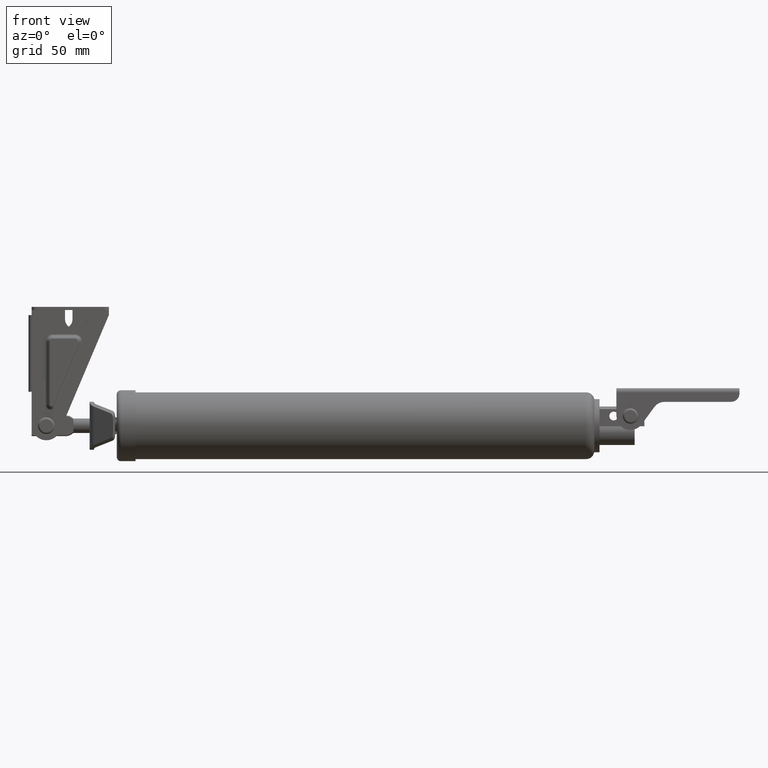
[diagram: clean part render]
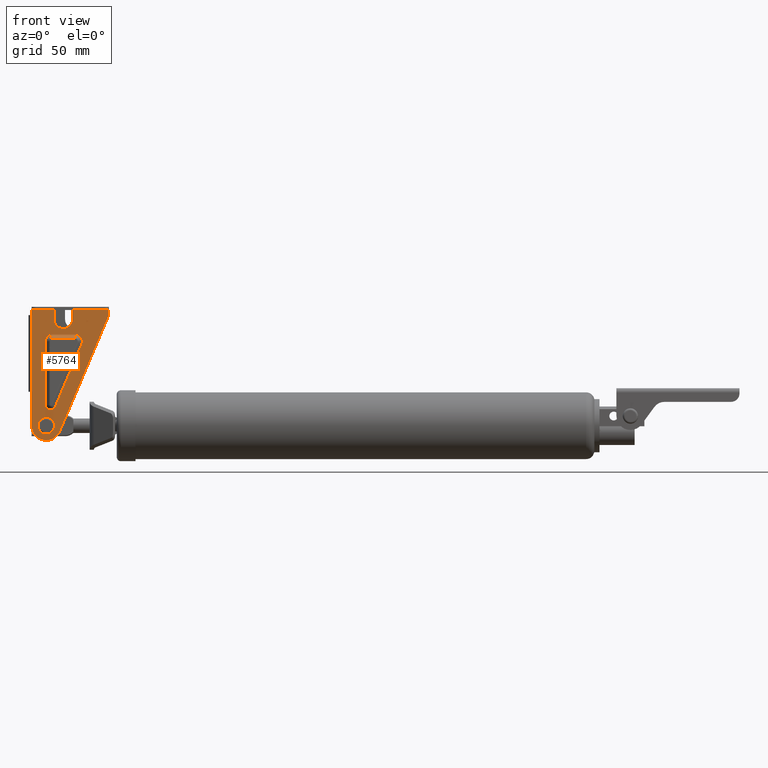
[diagram: same view with one face highlighted and labeled with its STEP entity id]
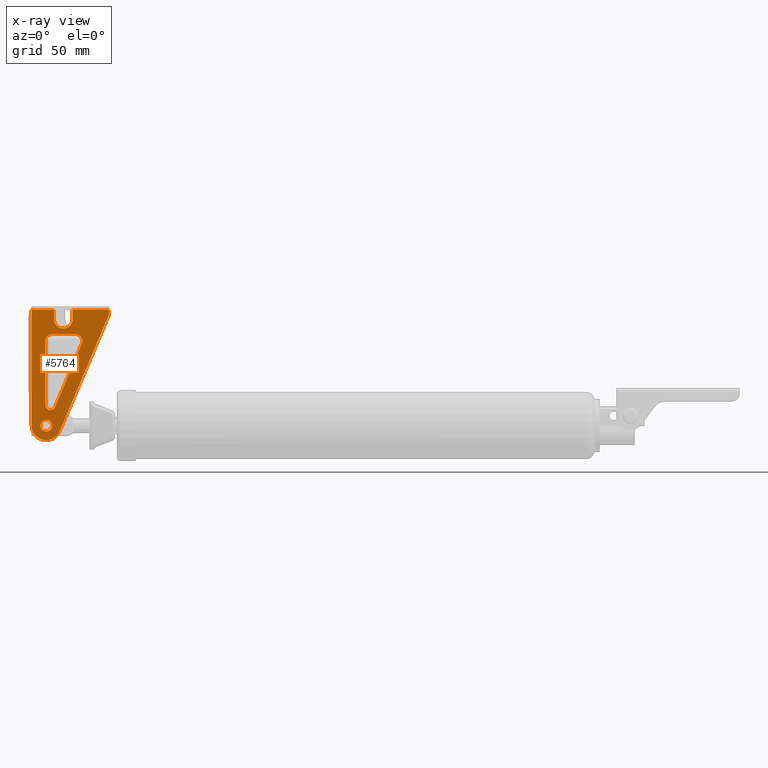
[diagram: x-ray of the same camera — body ghosted, the highlighted face saturated]
A machine part, front view. The second image highlights one B-rep face of the part: STEP entity #5764.
The next image is the same camera in x-ray: the body ghosted, the highlighted face saturated — about 0% of this face is hidden behind the body in this view.
In plain terms, the highlighted planar face has unit normal (0, -1, -0).
Its self-contained STEP definition (entity closure, byte-faithful):
#339=LINE('',#8968,#818);
#340=LINE('',#8978,#819);
#342=LINE('',#8990,#821);
#350=LINE('',#9014,#829);
#351=LINE('',#9018,#830);
#352=LINE('',#9020,#831);
#353=LINE('',#9022,#832);
#354=LINE('',#9024,#833);
#355=LINE('',#9028,#834);
#356=LINE('',#9030,#835);
#357=LINE('',#9032,#836);
#358=LINE('',#9033,#837);
#818=VECTOR('',#7224,30.630614447912);
#819=VECTOR('',#7237,10.8603856057283);
#821=VECTOR('',#7251,32.8314374978183);
#829=VECTOR('',#7277,16.3);
#830=VECTOR('',#7280,60.4979338490171);
#831=VECTOR('',#7281,2.5);
#832=VECTOR('',#7282,17.4);
#833=VECTOR('',#7283,4.44999990993001);
#834=VECTOR('',#7286,4.44999995002);
#835=VECTOR('',#7287,10.7);
#836=VECTOR('',#7288,2.5);
#837=VECTOR('',#7289,36.7);
#1292=PLANE('',#6273);
#1474=FACE_BOUND('',#2049,.T.);
#1475=FACE_BOUND('',#2050,.T.);
#1643=FACE_OUTER_BOUND('',#2048,.T.);
#2048=EDGE_LOOP('',(#4419,#4420,#4421,#4422,#4423,#4424,#4425,#4426,#4427,
#4428,#4429));
#2049=EDGE_LOOP('',(#4430));
#2050=EDGE_LOOP('',(#4431,#4432,#4433,#4434,#4435,#4436));
#2419=CIRCLE('',#6255,3.41421356237309);
#2423=CIRCLE('',#6261,3.41421356237296);
#2427=CIRCLE('',#6267,2.414213562373);
#2430=CIRCLE('',#6274,6.99999999999998);
#2431=CIRCLE('',#6275,4.44999999999999);
#2432=CIRCLE('',#6276,2.74999999999997);
#2723=VERTEX_POINT('',#8965);
#2724=VERTEX_POINT('',#8967);
#2725=VERTEX_POINT('',#8971);
#2727=VERTEX_POINT('',#8977);
#2729=VERTEX_POINT('',#8983);
#2731=VERTEX_POINT('',#8989);
#2737=VERTEX_POINT('',#9012);
#2738=VERTEX_POINT('',#9013);
#2739=VERTEX_POINT('',#9015);
#2740=VERTEX_POINT('',#9017);
#2741=VERTEX_POINT('',#9019);
#2742=VERTEX_POINT('',#9021);
#2743=VERTEX_POINT('',#9023);
#2744=VERTEX_POINT('',#9025);
#2745=VERTEX_POINT('',#9027);
#2746=VERTEX_POINT('',#9029);
#2747=VERTEX_POINT('',#9031);
#2748=VERTEX_POINT('',#9034);
#3338=EDGE_CURVE('',#2724,#2723,#339,.T.);
#3340=EDGE_CURVE('',#2723,#2725,#2419,.T.);
#3343=EDGE_CURVE('',#2725,#2727,#340,.T.);
#3346=EDGE_CURVE('',#2727,#2729,#2423,.T.);
#3349=EDGE_CURVE('',#2729,#2731,#342,.T.);
#3352=EDGE_CURVE('',#2724,#2731,#2427,.T.);
#3361=EDGE_CURVE('',#2737,#2738,#350,.T.);
#3362=EDGE_CURVE('',#2739,#2737,#2430,.T.);
#3363=EDGE_CURVE('',#2740,#2739,#351,.T.);
#3364=EDGE_CURVE('',#2741,#2740,#352,.T.);
#3365=EDGE_CURVE('',#2742,#2741,#353,.T.);
#3366=EDGE_CURVE('',#2743,#2742,#354,.T.);
#3367=EDGE_CURVE('',#2744,#2743,#2431,.T.);
#3368=EDGE_CURVE('',#2745,#2744,#355,.T.);
#3369=EDGE_CURVE('',#2746,#2745,#356,.T.);
#3370=EDGE_CURVE('',#2747,#2746,#357,.T.);
#3371=EDGE_CURVE('',#2738,#2747,#358,.T.);
#3372=EDGE_CURVE('',#2748,#2748,#2432,.T.);
#4419=ORIENTED_EDGE('',*,*,#3361,.F.);
#4420=ORIENTED_EDGE('',*,*,#3362,.F.);
#4421=ORIENTED_EDGE('',*,*,#3363,.F.);
#4422=ORIENTED_EDGE('',*,*,#3364,.F.);
#4423=ORIENTED_EDGE('',*,*,#3365,.F.);
#4424=ORIENTED_EDGE('',*,*,#3366,.F.);
#4425=ORIENTED_EDGE('',*,*,#3367,.F.);
#4426=ORIENTED_EDGE('',*,*,#3368,.F.);
#4427=ORIENTED_EDGE('',*,*,#3369,.F.);
#4428=ORIENTED_EDGE('',*,*,#3370,.F.);
#4429=ORIENTED_EDGE('',*,*,#3371,.F.);
#4430=ORIENTED_EDGE('',*,*,#3372,.T.);
#4431=ORIENTED_EDGE('',*,*,#3338,.T.);
#4432=ORIENTED_EDGE('',*,*,#3340,.T.);
#4433=ORIENTED_EDGE('',*,*,#3343,.T.);
#4434=ORIENTED_EDGE('',*,*,#3346,.T.);
#4435=ORIENTED_EDGE('',*,*,#3349,.T.);
#4436=ORIENTED_EDGE('',*,*,#3352,.F.);
#5764=ADVANCED_FACE('',(#1643,#1474,#1475),#1292,.T.);
#6255=AXIS2_PLACEMENT_3D('',#8972,#7229,#7230);
#6261=AXIS2_PLACEMENT_3D('',#8984,#7243,#7244);
#6267=AXIS2_PLACEMENT_3D('',#8995,#7257,#7258);
#6273=AXIS2_PLACEMENT_3D('',#9011,#7275,#7276);
#6274=AXIS2_PLACEMENT_3D('',#9016,#7278,#7279);
#6275=AXIS2_PLACEMENT_3D('',#9026,#7284,#7285);
#6276=AXIS2_PLACEMENT_3D('',#9035,#7290,#7291);
#7224=DIRECTION('',(0.,-1.,0.));
#7229=DIRECTION('center_axis',(-1.,0.,0.));
#7230=DIRECTION('ref_axis',(0.,-1.,-2.43882596462452E-14));
#7237=DIRECTION('',(0.,0.,1.));
#7243=DIRECTION('center_axis',(-1.,-4.01608224930345E-16,6.05745242882822E-16));
#7244=DIRECTION('ref_axis',(4.01608224930313E-16,0.389306555802332,0.921108248583914));
#7251=DIRECTION('',(-1.5217133307505E-15,0.921108248583954,-0.389306555802239));
#7257=DIRECTION('center_axis',(1.,-4.45103754384168E-16,-2.94897007897477E-17));
#7258=DIRECTION('ref_axis',(2.00445016239551E-16,0.389306555801998,0.921108248584055));
#7275=DIRECTION('center_axis',(1.,0.,0.));
#7276=DIRECTION('ref_axis',(0.,-1.,0.));
#7277=DIRECTION('',(0.,-1.,0.));
#7278=DIRECTION('center_axis',(-1.,-9.69837826495201E-17,1.96534591009084E-17));
#7279=DIRECTION('ref_axis',(-1.96534591009082E-17,-2.53765262771465E-15,
-1.));
#7280=DIRECTION('',(0.,0.921108248583954,-0.389306555802237));
#7281=DIRECTION('',(0.,1.,0.));
#7282=DIRECTION('',(0.,0.,1.));
#7283=DIRECTION('',(0.,-1.,0.));
#7284=DIRECTION('center_axis',(1.,6.23720793345913E-17,-6.23720797541667E-17));
#7285=DIRECTION('ref_axis',(6.23720810166055E-17,-2.02404485182261E-8,1.));
#7286=DIRECTION('',(0.,1.,0.));
#7287=DIRECTION('',(0.,0.,1.));
#7288=DIRECTION('',(0.,-1.,0.));
#7289=DIRECTION('',(0.,-1.,0.));
#7290=DIRECTION('center_axis',(-1.,-4.87330087874342E-16,4.87330087874342E-16));
#7291=DIRECTION('ref_axis',(4.87330087874336E-16,1.2918958832002E-14,1.));
#8965=CARTESIAN_POINT('',(4.6,-189.5,-0.414213562373086));
#8967=CARTESIAN_POINT('',(4.6,-158.869385552088,-0.414213562373086));
#8968=CARTESIAN_POINT('',(4.6,-158.869385552088,-0.414213562373086));
#8971=CARTESIAN_POINT('',(4.6,-192.914213562373,3.00000000000001));
#8972=CARTESIAN_POINT('Origin',(4.6,-189.5,2.99999999999999));
#8977=CARTESIAN_POINT('',(4.6,-192.914213562373,13.8603856057283));
#8978=CARTESIAN_POINT('',(4.6,-192.914213562373,3.00000000000001));
#8983=CARTESIAN_POINT('',(4.59999999999999,-188.170824277259,17.0052458804573));
#8984=CARTESIAN_POINT('Origin',(4.6,-189.5,13.8603856057285));
#8989=CARTESIAN_POINT('',(4.59999999999994,-157.92951638515,4.22375202614518));
#8990=CARTESIAN_POINT('',(4.59999999999999,-188.170824277259,17.0052458804573));
#8995=CARTESIAN_POINT('Origin',(4.6,-158.869385552088,1.9999999999999));
#9011=CARTESIAN_POINT('Origin',(4.6,-210.969734479755,33.82));
#9012=CARTESIAN_POINT('',(4.6,-149.,-6.99999999999999));
#9013=CARTESIAN_POINT('',(4.6,-165.3,-6.99999999999999));
#9014=CARTESIAN_POINT('',(4.6,-149.,-6.99999999999999));
#9015=CARTESIAN_POINT('',(4.6,-146.274854109384,6.44775774008757));
#9016=CARTESIAN_POINT('Origin',(4.6,-149.,-5.55111512312578E-15));
#9017=CARTESIAN_POINT('',(4.6,-202.,30.));
#9018=CARTESIAN_POINT('',(4.6,-202.,30.));
#9019=CARTESIAN_POINT('',(4.6,-204.5,30.));
#9020=CARTESIAN_POINT('',(4.6,-204.5,30.));
#9021=CARTESIAN_POINT('',(4.6,-204.5,12.6));
#9022=CARTESIAN_POINT('',(4.6,-204.5,12.6));
#9023=CARTESIAN_POINT('',(4.6,-200.05000009007,12.6));
#9024=CARTESIAN_POINT('',(4.6,-200.05000009007,12.6));
#9025=CARTESIAN_POINT('',(4.6,-200.05000004998,3.70000000000001));
#9026=CARTESIAN_POINT('Origin',(4.6,-200.05,8.15000000000001));
#9027=CARTESIAN_POINT('',(4.6,-204.5,3.70000000000001));
#9028=CARTESIAN_POINT('',(4.6,-204.5,3.70000000000001));
#9029=CARTESIAN_POINT('',(4.6,-204.5,-6.99999999999999));
#9030=CARTESIAN_POINT('',(4.6,-204.5,-6.99999999999999));
#9031=CARTESIAN_POINT('',(4.6,-202.,-6.99999999999999));
#9032=CARTESIAN_POINT('',(4.6,-202.,-6.99999999999999));
#9033=CARTESIAN_POINT('',(4.6,-165.3,-6.99999999999999));
#9034=CARTESIAN_POINT('',(4.6,-149.,-2.75));
#9035=CARTESIAN_POINT('Origin',(4.6,-149.,3.13765486772064E-14));